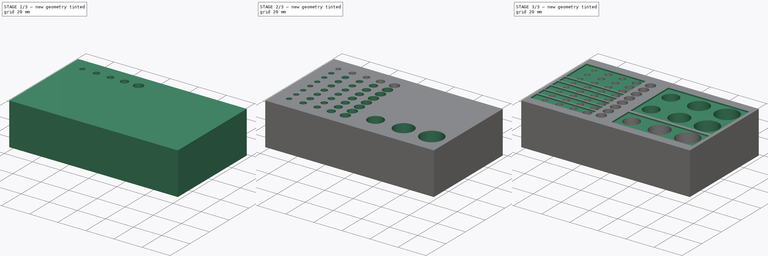
[diagram: build sequence overview — one tinted view per stage of 3, left to right]
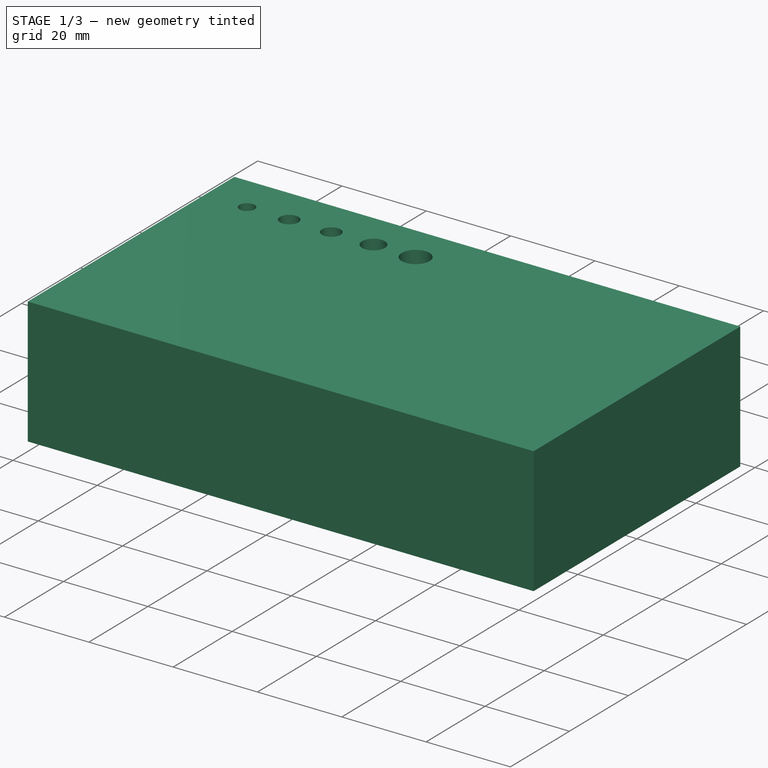
[diagram: stage 1 of 3 — iso view after this stage's code; geometry added in this stage tinted green]
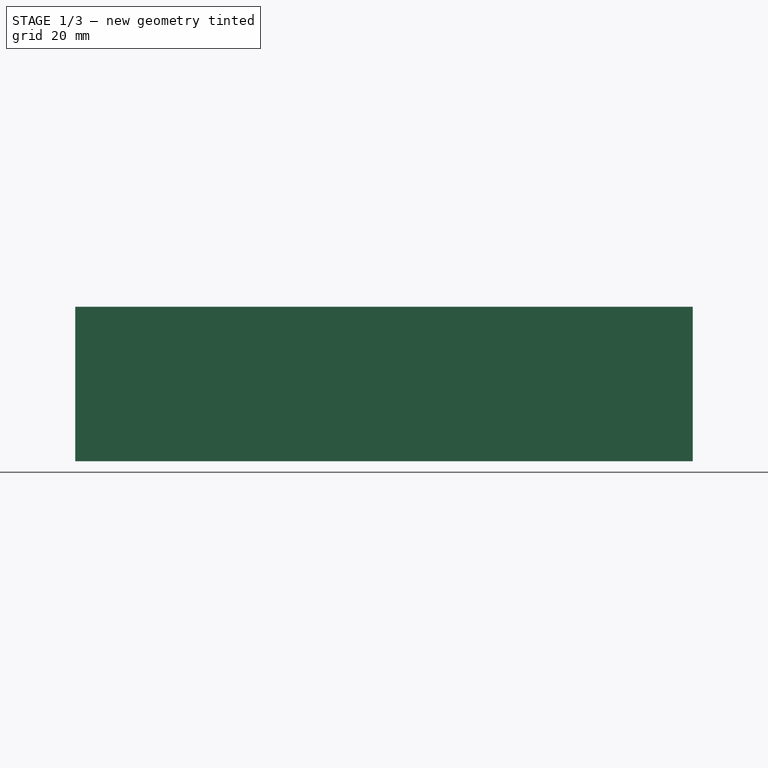
[diagram: stage 1 of 3 — front view after this stage's code; geometry added in this stage tinted green]
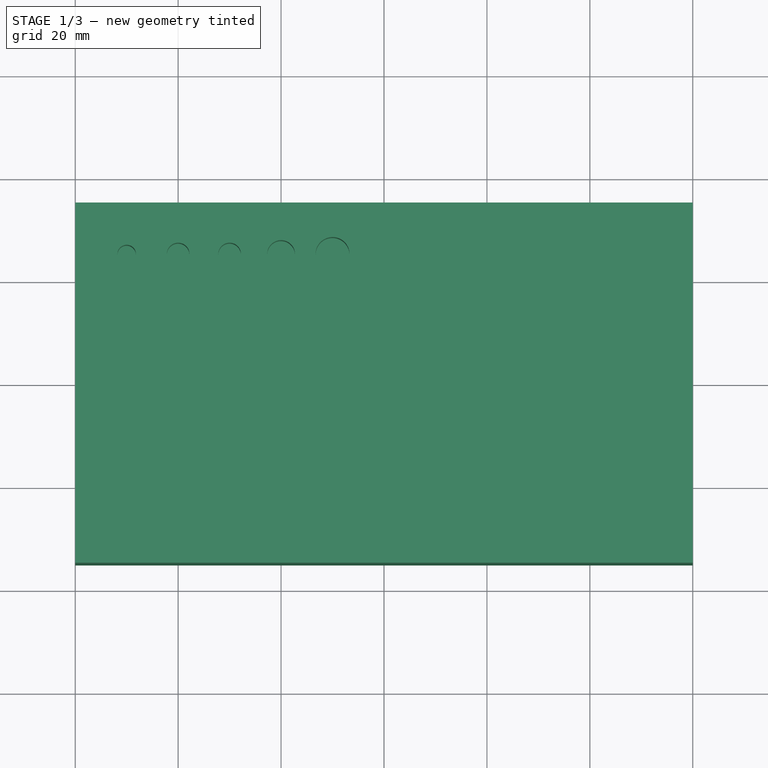
[diagram: stage 1 of 3 — top view after this stage's code; geometry added in this stage tinted green]
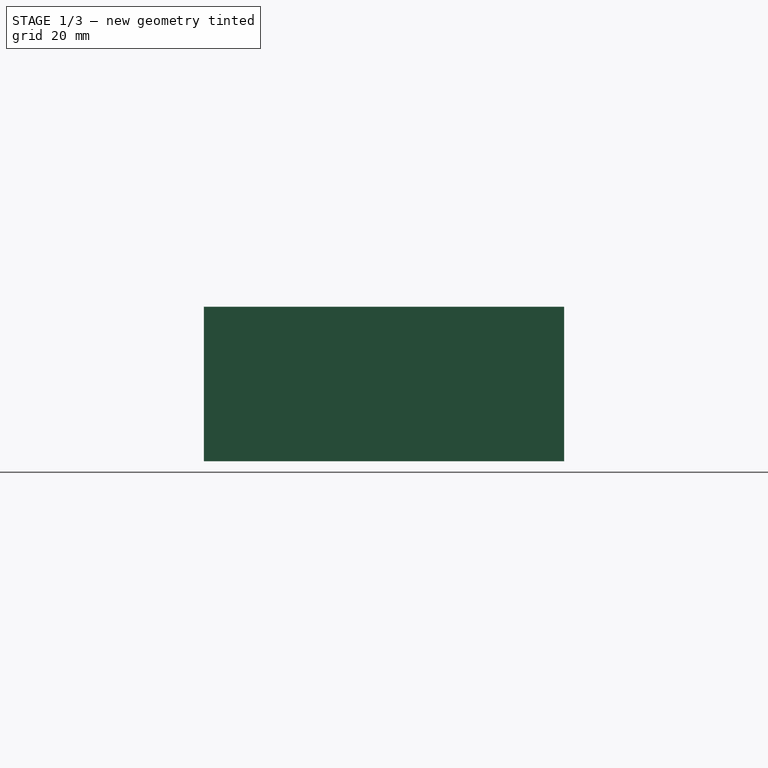
[diagram: stage 1 of 3 — right view after this stage's code; geometry added in this stage tinted green]
FCSTD DOCUMENT  (FreeCAD 0.16R)
Label: bitholder
License: All rights reserved
LicenseURL: http://en.wikipedia.org/wiki/All_rights_reserved
objects: Sketcher::SketchObject×6, PartDesign::Pocket×3, PartDesign::LinearPattern×2, PartDesign::Pad×1
note: 16 computed .brp shape members not serialized (recipe doc carries the construction recipe); baked Part::Feature solids carry a one-line shape summary decoded from their .brp

FEATURE [Sketcher::SketchObject] Sketch
  sketch-geometry (4):
    g0: LineSegment StartX=-60 StartY=35 StartZ=0 EndX=60 EndY=35 EndZ=0
    g1: LineSegment StartX=60 StartY=35 StartZ=0 EndX=60 EndY=-35 EndZ=0
    g2: LineSegment StartX=60 StartY=-35 StartZ=0 EndX=-60 EndY=-35 EndZ=0
    g3: LineSegment StartX=-60 StartY=-35 StartZ=0 EndX=-60 EndY=35 EndZ=0
  constraints (11):
    c: Coincident(g0,g1)
    c: Coincident(g1,g2)
    c: Coincident(g2,g3)
    c: Coincident(g3,g0)
    c: Horizontal(g0)
    c: Horizontal(g2)
    c: Vertical(g1)
    c: Vertical(g3)
    c: Symmetric(g1,g0,g-1)
    c: Distance(g3) = 70
    c: Distance(g0) = 120
FEATURE [PartDesign::Pad] Pad
  Length = 30
  Length2 = 100
  Sketch = -> Sketch
  Type = 0
FEATURE [Sketcher::SketchObject] Sketch001
  ExternalGeometry = -> [Pad]
  Placement = pos=(0,0,30) rot=(0,0,1;0rad)
  Support = -> Pad [Face6]
  sketch-geometry (6):
    g0: Circle CenterX=-40 CenterY=25 CenterZ=0 NormalX=0 NormalY=0 NormalZ=1 Radius=2.2
    g1: Circle CenterX=-10 CenterY=25 CenterZ=0 NormalX=0 NormalY=0 NormalZ=1 Radius=3.3
    g2: Circle CenterX=-30 CenterY=25 CenterZ=0 NormalX=0 NormalY=0 NormalZ=1 Radius=2.2
    g3: Circle CenterX=-20 CenterY=25 CenterZ=0 NormalX=0 NormalY=0 NormalZ=1 Radius=2.7
    g4: LineSegment [constr] StartX=-120 StartY=25 StartZ=0 EndX=80 EndY=25 EndZ=0
    g5: Circle CenterX=-50 CenterY=25 CenterZ=0 NormalX=0 NormalY=0 NormalZ=1 Radius=1.8
  constraints (19):
    c: Radius(g0) = 2.2
    c: Radius(g2) = 2.2
    c: Radius(g1) = 3.3
    c: Radius(g3) = 2.7
    c: Horizontal(g4)
    c: PointOnObject(g0,g4)
    c: PointOnObject(g2,g4)
    c: PointOnObject(g3,g4)
    c: PointOnObject(g1,g4)
    c: DistanceY(g4) = 25
    c: Distance(g2,g0) = 10
    c: Distance(g3,g2) = 10
    c: Distance(g3,g1) = 10
    c: Distance(g4) = 200
    c: DistanceX(g4) = 80
    c: PointOnObject(g5,g4)
    c: Distance(g5,g0) = 10
    c: Distance(g5,g-3) = 10
    c: Radius(g5) = 1.8
FEATURE [PartDesign::Pocket] Pocket
  Length = 12
  Sketch = -> Sketch001
  Type = 0
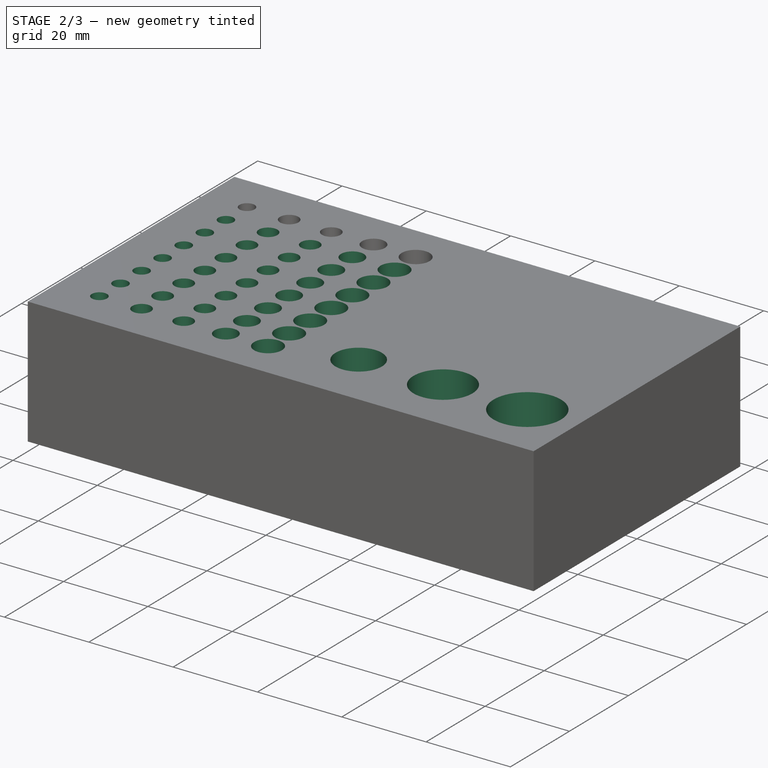
[diagram: stage 2 of 3 — iso view after this stage's code; geometry added in this stage tinted green]
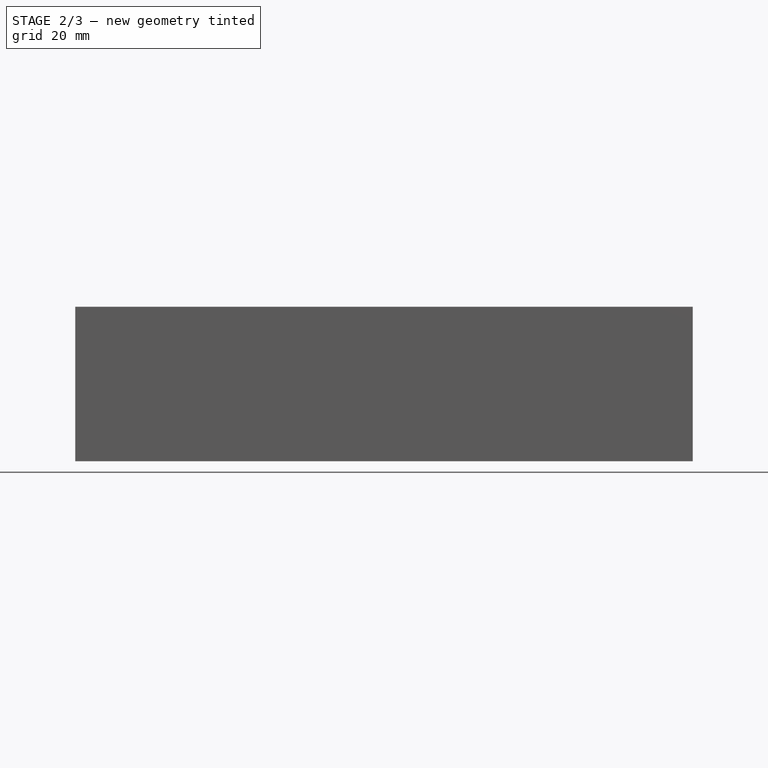
[diagram: stage 2 of 3 — front view after this stage's code; geometry added in this stage tinted green]
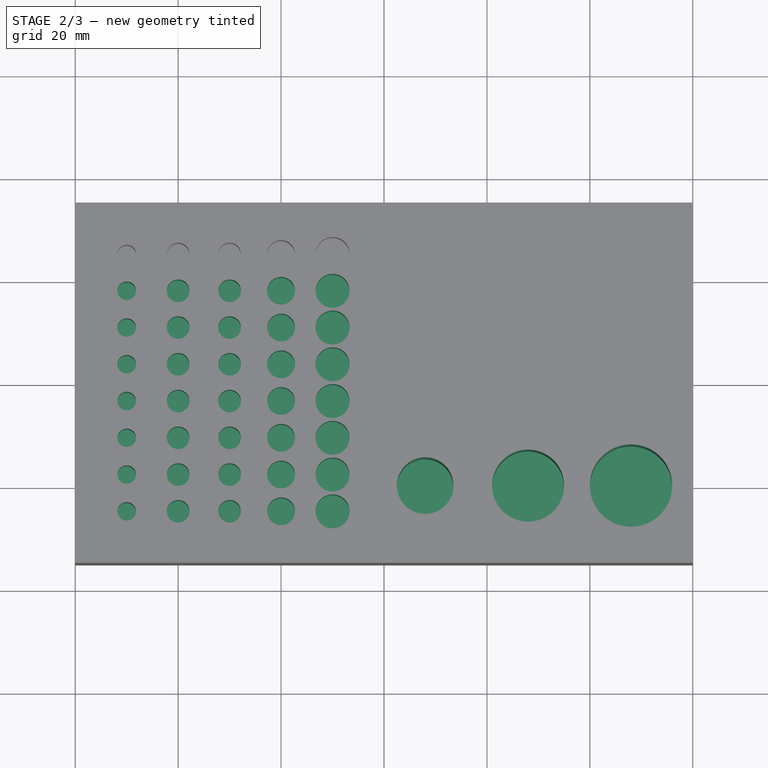
[diagram: stage 2 of 3 — top view after this stage's code; geometry added in this stage tinted green]
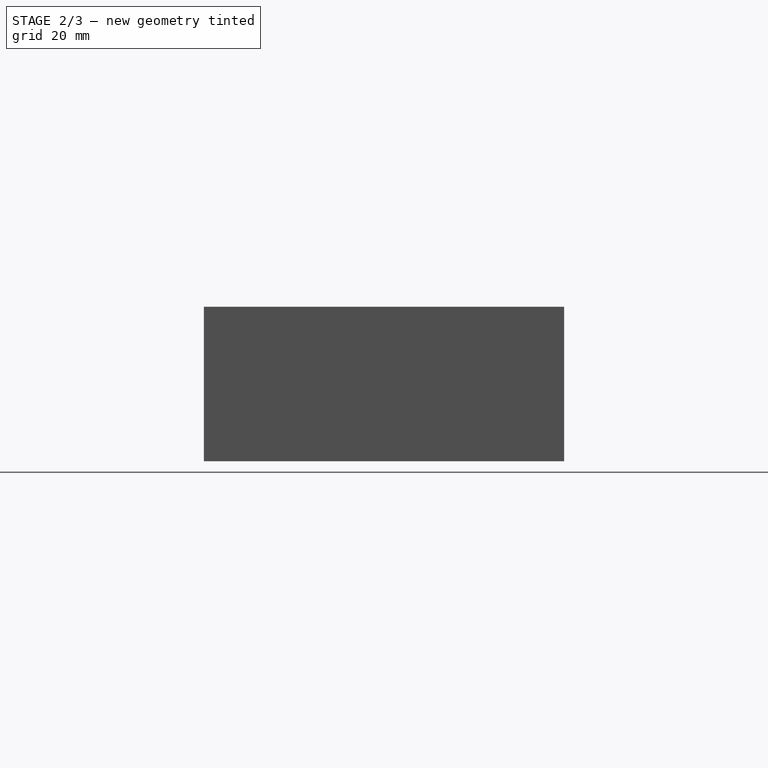
[diagram: stage 2 of 3 — right view after this stage's code; geometry added in this stage tinted green]
FEATURE [PartDesign::LinearPattern] LinearPattern
  Direction = -> Sketch001 [V_Axis]
  Length = 50
  Occurrences = 8
  Originals = -> [Pocket]
  Reversed = true
FEATURE [Sketcher::SketchObject] Sketch002
  Placement = pos=(0,0,30) rot=(0,0,1;0rad)
  Support = -> LinearPattern [Face5]
  sketch-geometry (3):
    g0: Circle CenterX=8 CenterY=-20 CenterZ=0 NormalX=0 NormalY=0 NormalZ=1 Radius=5.5
    g1: Circle CenterX=28 CenterY=-20 CenterZ=0 NormalX=0 NormalY=0 NormalZ=1 Radius=7
    g2: Circle CenterX=48 CenterY=-20 CenterZ=0 NormalX=0 NormalY=0 NormalZ=1 Radius=8
  constraints (9):
    c: Radius(g2) = 8
    c: Radius(g1) = 7
    c: Radius(g0) = 5.5
    c: Distance(g2,g1) = 20
    c: Distance(g0,g1) = 20
    c: DistanceY(g0) = -20
    c: DistanceY(g1) = -20
    c: DistanceY(g2) = -20
    c: DistanceX(g0) = 8
FEATURE [PartDesign::Pocket] Pocket001
  Length = 25
  Sketch = -> Sketch002
  Type = 0
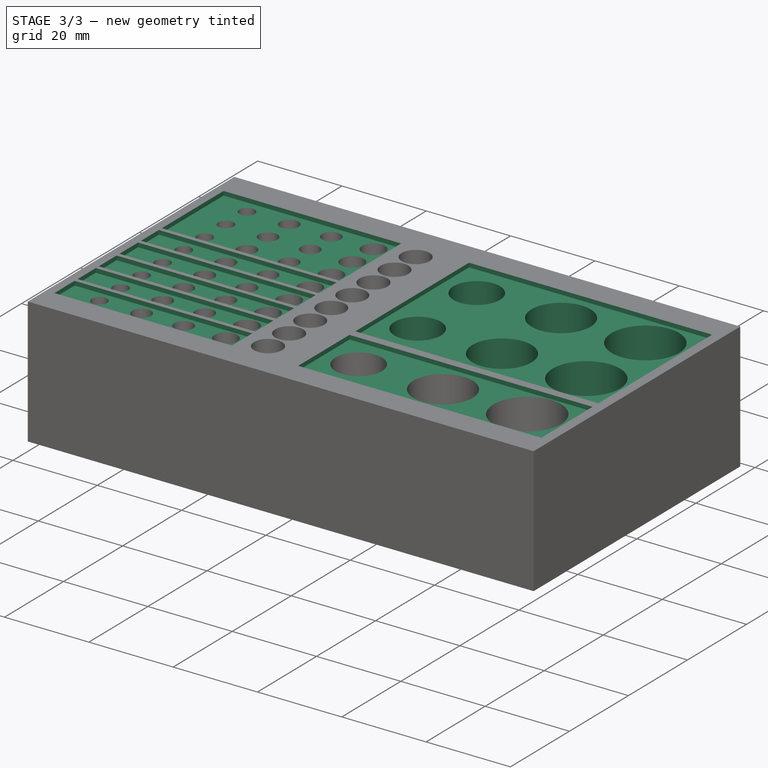
[diagram: stage 3 of 3 — iso view after this stage's code; geometry added in this stage tinted green]
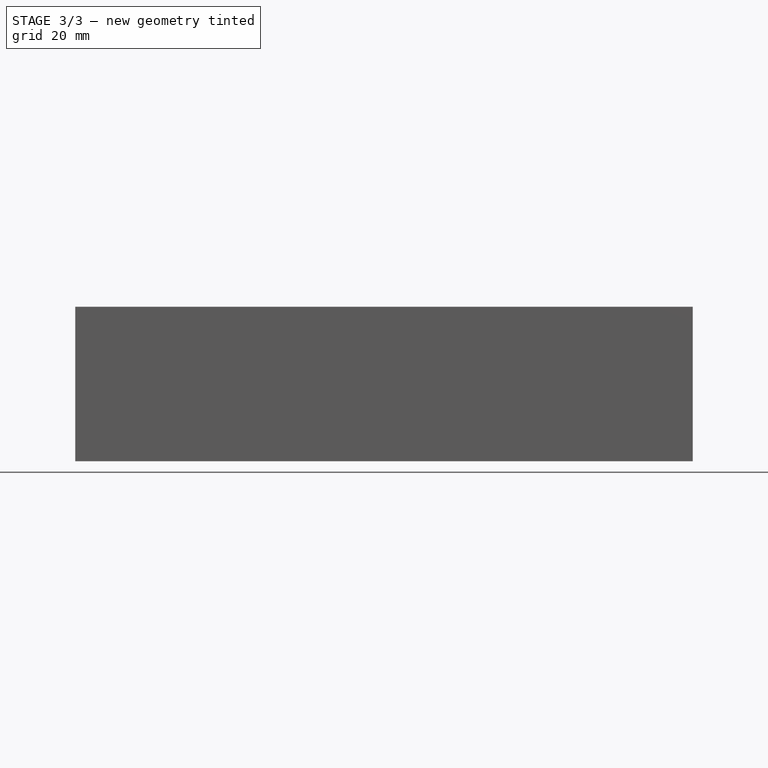
[diagram: stage 3 of 3 — front view after this stage's code; geometry added in this stage tinted green]
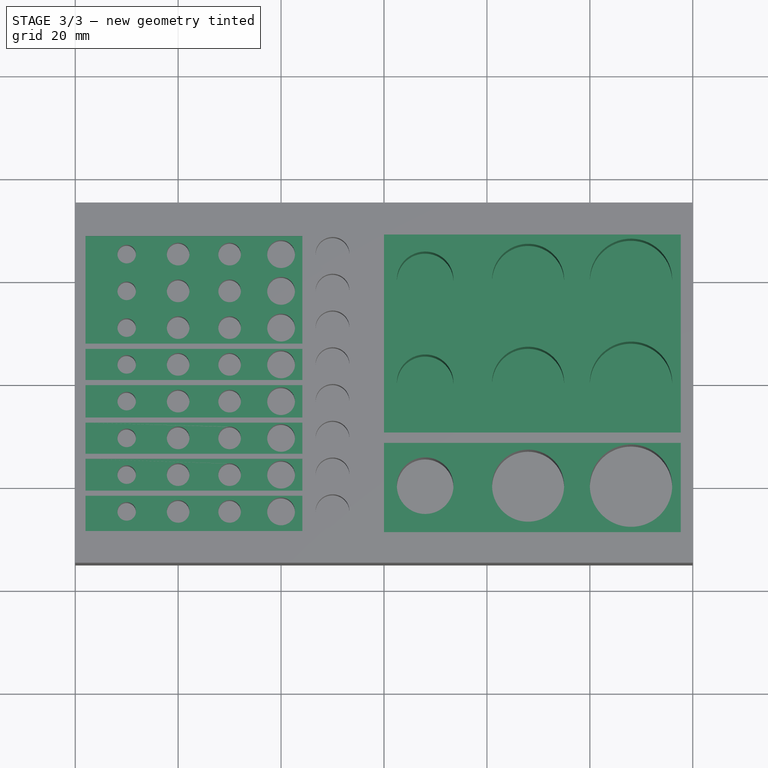
[diagram: stage 3 of 3 — top view after this stage's code; geometry added in this stage tinted green]
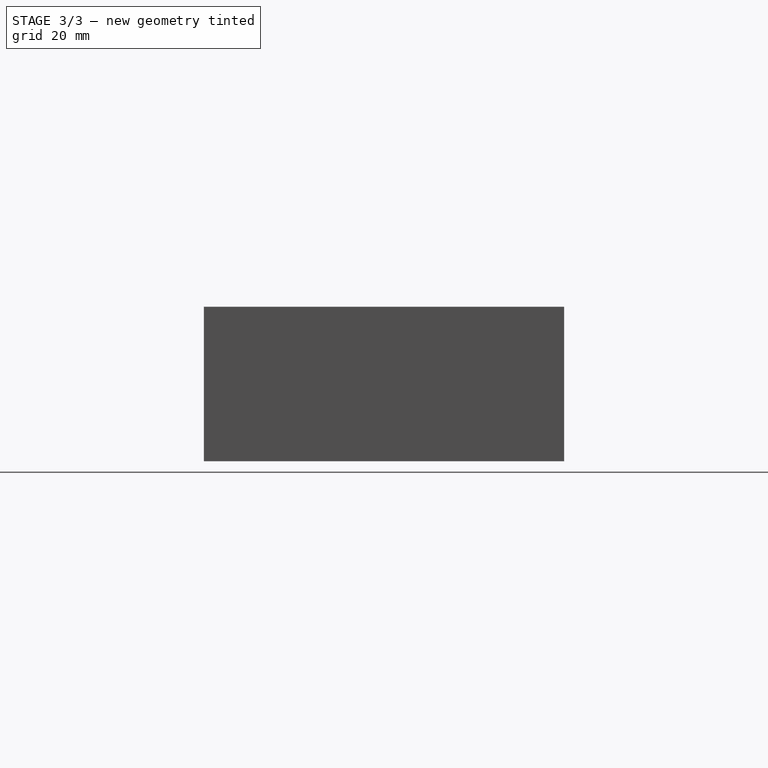
[diagram: stage 3 of 3 — right view after this stage's code; geometry added in this stage tinted green]
FEATURE [PartDesign::LinearPattern] LinearPattern001
  Direction = -> Sketch002 [V_Axis]
  Length = 40
  Occurrences = 3
  Originals = -> [Pocket001]
FEATURE [Sketcher::SketchObject] Sketch003
  ExternalGeometry = -> [LinearPattern001]
  Placement = pos=(0,0,30) rot=(0,0,1;0rad)
  Support = -> LinearPattern001 [Face5]
  sketch-geometry (34):
    g0: LineSegment StartX=-58 StartY=28.4909 StartZ=0 EndX=-15.8674 EndY=28.4909 EndZ=0
    g1: LineSegment StartX=-15.8674 StartY=28.4909 StartZ=0 EndX=-15.8674 EndY=7.57561 EndZ=0
    g2: LineSegment StartX=-15.8674 StartY=7.57561 StartZ=0 EndX=-58 EndY=7.57561 EndZ=0
    g3: LineSegment StartX=-58 StartY=7.57561 StartZ=0 EndX=-58 EndY=28.4909 EndZ=0
    g4: LineSegment StartX=-58 StartY=6.57561 StartZ=0 EndX=-15.8674 EndY=6.57561 EndZ=0
    g5: LineSegment StartX=-15.8674 StartY=6.57561 StartZ=0 EndX=-15.8674 EndY=0.525672 EndZ=0
    g6: LineSegment StartX=-15.8674 StartY=0.525672 StartZ=0 EndX=-58 EndY=0.525672 EndZ=0
    g7: LineSegment StartX=-58 StartY=0.525672 StartZ=0 EndX=-58 EndY=6.57561 EndZ=0
    g8: LineSegment StartX=-58 StartY=-0.474328 StartZ=0 EndX=-15.8674 EndY=-0.474328 EndZ=0
    g9: LineSegment StartX=-15.8674 StartY=-0.474328 StartZ=0 EndX=-15.8674 EndY=-6.76095 EndZ=0
    g10: LineSegment StartX=-15.8674 StartY=-6.76095 StartZ=0 EndX=-58 EndY=-6.76095 EndZ=0
    g11: LineSegment StartX=-58 StartY=-6.76095 StartZ=0 EndX=-58 EndY=-0.474328 EndZ=0
    g12: LineSegment StartX=-58 StartY=-7.76095 StartZ=0 EndX=-15.8674 EndY=-7.76095 EndZ=0
    g13: LineSegment StartX=-15.8674 StartY=-7.76095 StartZ=0 EndX=-15.8674 EndY=-13.8145 EndZ=0
    g14: LineSegment StartX=-15.8674 StartY=-13.8145 StartZ=0 EndX=-58 EndY=-13.8145 EndZ=0
    g15: LineSegment StartX=-58 StartY=-13.8145 StartZ=0 EndX=-58 EndY=-7.76095 EndZ=0
    g16: LineSegment StartX=-58 StartY=-14.8145 StartZ=0 EndX=-15.8674 EndY=-14.8145 EndZ=0
    g17: LineSegment StartX=-15.8674 StartY=-14.8145 StartZ=0 EndX=-15.8674 EndY=-20.9722 EndZ=0
    g18: LineSegment StartX=-15.8674 StartY=-20.9722 StartZ=0 EndX=-58 EndY=-20.9722 EndZ=0
    g19: LineSegment StartX=-58 StartY=-20.9722 StartZ=0 EndX=-58 EndY=-14.8145 EndZ=0
    g20: LineSegment StartX=-58 StartY=-21.9722 StartZ=0 EndX=-15.8674 EndY=-21.9722 EndZ=0
    g21: LineSegment StartX=-15.8674 StartY=-21.9722 StartZ=0 EndX=-15.8674 EndY=-28.8206 EndZ=0
    g22: LineSegment StartX=-15.8674 StartY=-28.8206 StartZ=0 EndX=-58 EndY=-28.8206 EndZ=0
    g23: LineSegment StartX=-58 StartY=-28.8206 StartZ=0 EndX=-58 EndY=-21.9722 EndZ=0
    g24: LineSegment StartX=0 StartY=28.8005 StartZ=0 EndX=57.6695 EndY=28.8005 EndZ=0
    g25: LineSegment StartX=57.6695 StartY=28.8005 StartZ=0 EndX=57.6695 EndY=-9.69586 EndZ=0
    g26: LineSegment StartX=57.6695 StartY=-9.69586 StartZ=0 EndX=0 EndY=-9.69586 EndZ=0
    g27: LineSegment StartX=0 StartY=-9.69586 StartZ=0 EndX=0 EndY=28.8005 EndZ=0
    g28: LineSegment StartX=0 StartY=-11.6959 StartZ=0 EndX=57.6695 EndY=-11.6959 EndZ=0
    g29: LineSegment StartX=57.6695 StartY=-11.6959 StartZ=0 EndX=57.6695 EndY=-29.06 EndZ=0
    g30: LineSegment StartX=57.6695 StartY=-29.06 StartZ=0 EndX=0 EndY=-29.06 EndZ=0
    g31: LineSegment StartX=0 StartY=-29.06 StartZ=0 EndX=0 EndY=-11.6959 EndZ=0
    g32: LineSegment [constr] StartX=-15.8674 StartY=37.6027 StartZ=0 EndX=-15.8674 EndY=-38.6191 EndZ=0
    g33: LineSegment [constr] StartX=-58 StartY=31.0246 StartZ=0 EndX=-58 EndY=-32.0195 EndZ=0
  constraints (88):
    c: Coincident(g0,g1)
    c: Coincident(g1,g2)
    c: Coincident(g2,g3)
    c: Coincident(g3,g0)
    c: Horizontal(g0)
    c: Horizontal(g2)
    c: Vertical(g1)
    c: Vertical(g3)
    c: Coincident(g4,g5)
    c: Coincident(g5,g6)
    c: Coincident(g6,g7)
    c: Coincident(g7,g4)
    c: Horizontal(g4)
    c: Horizontal(g6)
    c: Vertical(g5)
    c: Vertical(g7)
    c: Coincident(g8,g9)
    c: Coincident(g9,g10)
    c: Coincident(g10,g11)
    c: Coincident(g11,g8)
    c: Horizontal(g8)
    c: Horizontal(g10)
    c: Vertical(g9)
    c: Vertical(g11)
    c: Coincident(g12,g13)
    c: Coincident(g13,g14)
    c: Coincident(g14,g15)
    c: Coincident(g15,g12)
    c: Horizontal(g12)
    c: Horizontal(g14)
    c: Vertical(g13)
    c: Vertical(g15)
    c: Coincident(g16,g17)
    c: Coincident(g17,g18)
    c: Coincident(g18,g19)
    c: Coincident(g19,g16)
    c: Horizontal(g16)
    c: Horizontal(g18)
    c: Vertical(g17)
    c: Vertical(g19)
    c: Coincident(g20,g21)
    c: Coincident(g21,g22)
    c: Coincident(g22,g23)
    c: Coincident(g23,g20)
    c: Horizontal(g20)
    c: Horizontal(g22)
    c: Vertical(g21)
    c: Vertical(g23)
    c: Coincident(g24,g25)
    c: Coincident(g25,g26)
    c: Coincident(g26,g27)
    c: Coincident(g27,g24)
    c: Horizontal(g24)
    c: Horizontal(g26)
    c: Vertical(g25)
    c: Vertical(g27)
    c: Coincident(g28,g29)
    c: Coincident(g29,g30)
    c: Coincident(g30,g31)
    c: Coincident(g31,g28)
    c: Horizontal(g28)
    c: Horizontal(g30)
    c: Vertical(g29)
    c: Vertical(g31)
    c: Distance(g28,g25) = 2
    c: PointOnObject(g28,g-2)
    c: PointOnObject(g26,g-2)
    c: DistanceX(g28,g25) = 0
    c: Distance(g4,g1) = 1
    c: Vertical(g32)
    c: PointOnObject(g21,g32)
    c: PointOnObject(g17,g32)
    c: PointOnObject(g13,g32)
    c: PointOnObject(g9,g32)
    c: PointOnObject(g5,g32)
    c: PointOnObject(g1,g32)
    c: Distance(g20,g17) = 1
    c: Distance(g16,g13) = 1
    c: Distance(g12,g9) = 1
    c: Distance(g8,g5) = 1
    c: Vertical(g33)
    c: PointOnObject(g22,g33)
    c: PointOnObject(g18,g33)
    c: PointOnObject(g14,g33)
    c: PointOnObject(g10,g33)
    c: PointOnObject(g6,g33)
    c: PointOnObject(g2,g33)
    c: Distance(g33,g-4) = 2
FEATURE [PartDesign::Pocket] Pocket002
  Length = 1
  Sketch = -> Sketch003
  Type = 0
FEATURE [Sketcher::SketchObject] Sketch004
  Placement = pos=(60,0,0) rot=(0.57735,0.57735,0.57735;2.0944rad)
  Support = -> Pocket002 [Face3]
FEATURE [Sketcher::SketchObject] Sketch005
  ExternalGeometry = -> [Pocket002]
  Placement = pos=(60,0,0) rot=(0.57735,0.57735,0.57735;2.0944rad)
  Support = -> Pocket002 [Face3]
  sketch-geometry (4):
    g0: LineSegment StartX=32.5708 StartY=26.5308 StartZ=0 EndX=8.74632 EndY=-7.49413 EndZ=0
    g1: LineSegment StartX=32.5708 StartY=26.5308 StartZ=0 EndX=51.8296 EndY=13.0457 EndZ=0
    g2: LineSegment StartX=51.8296 StartY=13.0457 StartZ=0 EndX=28.0051 EndY=-20.9793 EndZ=0
    g3: LineSegment StartX=28.0051 StartY=-20.9793 StartZ=0 EndX=8.74632 EndY=-7.49413 EndZ=0
  constraints (10):
    c: PointOnObject(g-3,g0)
    c: Angle(g0) = -2.18166
    c: Coincident(g0,g1)
    c: Coincident(g1,g2)
    c: Coincident(g2,g3)
    c: Coincident(g3,g0)
    c: Parallel(g2,g0)
    c: Parallel(g1,g3)
    c: Perpendicular(g0,g3)
    c: Coincident(g0,g-3)
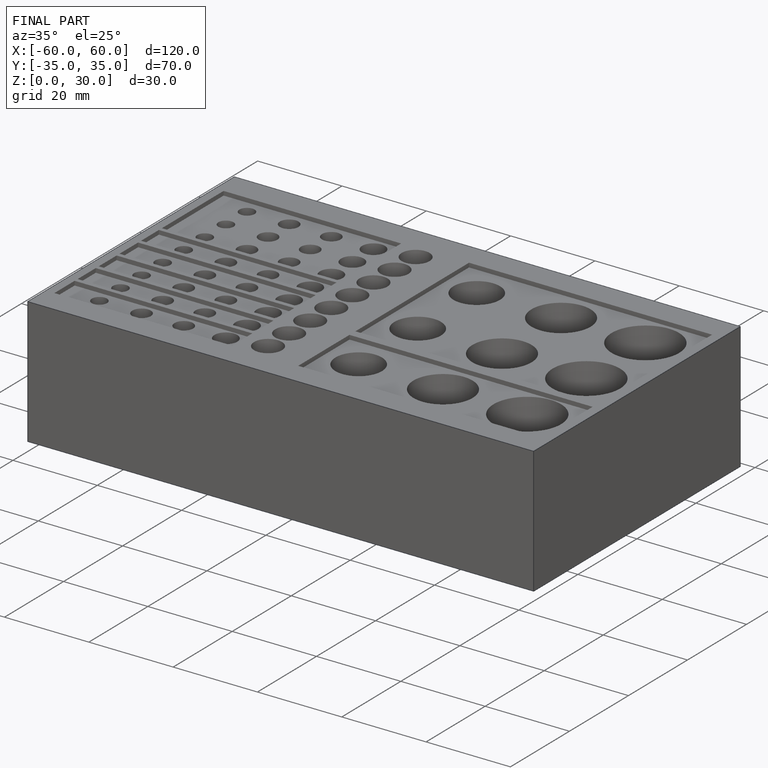
[diagram: finished part — iso view with bounding-box wireframe]
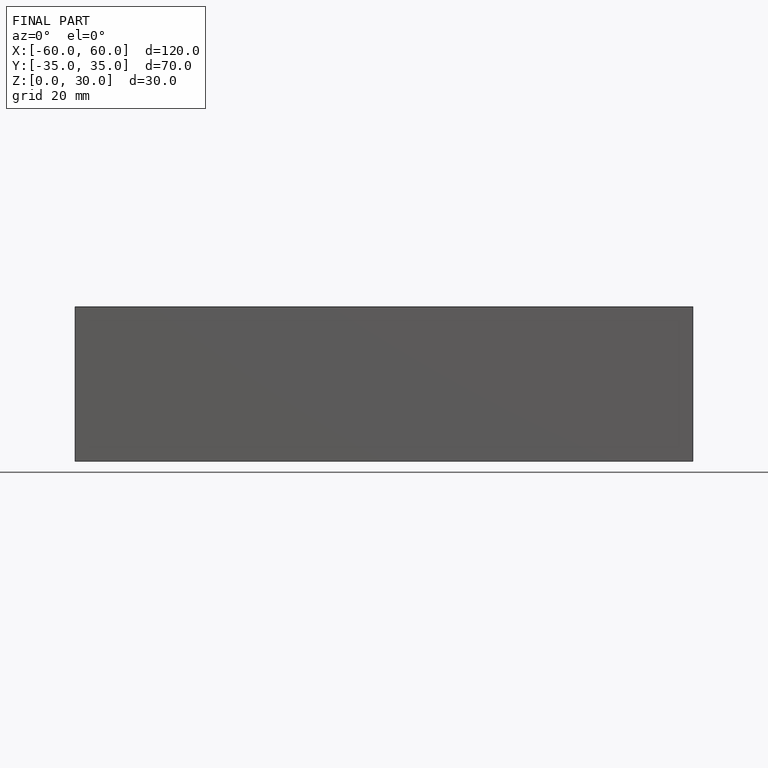
[diagram: finished part — front view with bounding-box wireframe]
